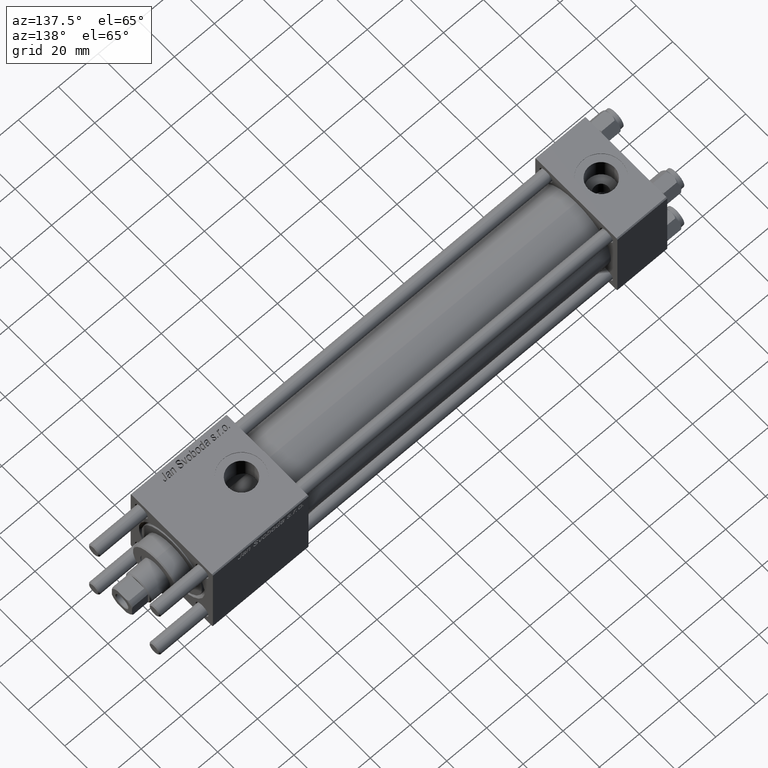
[diagram: clean part render]
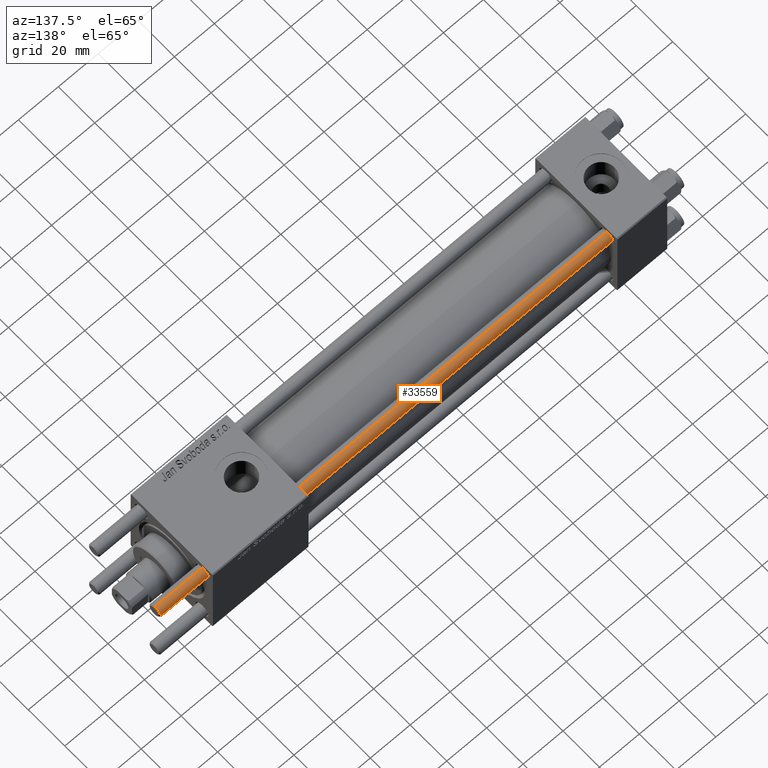
[diagram: same view with one face highlighted and labeled with its STEP entity id]
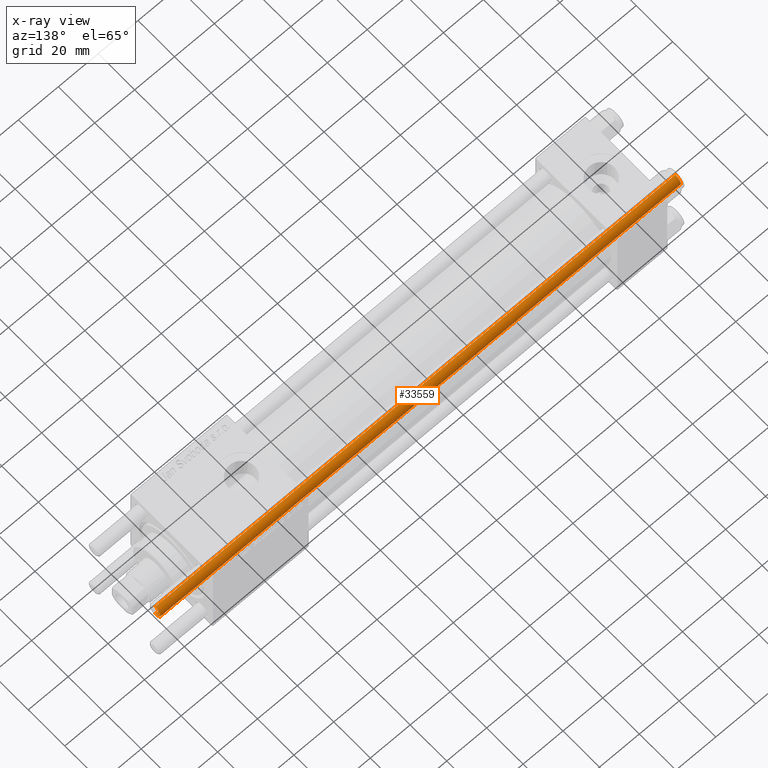
[diagram: x-ray of the same camera — body ghosted, the highlighted face saturated]
A machine part, auxiliary view. The second image highlights one B-rep face of the part: STEP entity #33559.
The next image is the same camera in x-ray: the body ghosted, the highlighted face saturated — about 0% of this face is hidden behind the body in this view.
In plain terms, the highlighted cylindrical surface (edge-blend (fillet) strip) has radius 3 mm, axis along (1, -0, -0).
Its self-contained STEP definition (entity closure, byte-faithful):
#3924 = ORIENTED_EDGE ( 'NONE', *, *, #44364, .F. ) ;
#4052 = EDGE_CURVE ( 'NONE', #16717, #43150, #30163, .T. ) ;
#4483 = ORIENTED_EDGE ( 'NONE', *, *, #15848, .T. ) ;
#6328 = DIRECTION ( 'NONE',  ( 1.000000000000000000, 0.000000000000000000, 0.000000000000000000 ) ) ;
#6733 = CIRCLE ( 'NONE', #36119, 3.000000000000000444 ) ;
#9513 = CYLINDRICAL_SURFACE ( 'NONE', #43861, 3.000000000000000444 ) ;
#10006 = DIRECTION ( 'NONE',  ( 1.000000000000000000, 0.000000000000000000, 0.000000000000000000 ) ) ;
#14887 = DIRECTION ( 'NONE',  ( -0.000000000000000000, -0.000000000000000000, 1.000000000000000000 ) ) ;
#15233 = DIRECTION ( 'NONE',  ( 0.000000000000000000, 0.000000000000000000, -1.000000000000000000 ) ) ;
#15739 = DIRECTION ( 'NONE',  ( -0.000000000000000000, -0.000000000000000000, -1.000000000000000000 ) ) ;
#15848 = EDGE_CURVE ( 'NONE', #49711, #27907, #6733, .T. ) ;
#16717 = VERTEX_POINT ( 'NONE', #39714 ) ;
#18994 = DIRECTION ( 'NONE',  ( -0.000000000000000000, -0.000000000000000000, -1.000000000000000000 ) ) ;
#19204 = CARTESIAN_POINT ( 'NONE',  ( -3.000000000000000444, 0.000000000000000000, 262.0000000000000000 ) ) ;
#21914 = AXIS2_PLACEMENT_3D ( 'NONE', #37373, #15233, #6328 ) ;
#23306 = CARTESIAN_POINT ( 'NONE',  ( 0.000000000000000000, 0.000000000000000000, 262.0000000000000000 ) ) ;
#23320 = ORIENTED_EDGE ( 'NONE', *, *, #34718, .T. ) ;
#24620 = VECTOR ( 'NONE', #15739, 1000.000000000000000 ) ;
#27320 = DIRECTION ( 'NONE',  ( -1.000000000000000000, 0.000000000000000000, 0.000000000000000000 ) ) ;
#27532 = CARTESIAN_POINT ( 'NONE',  ( 0.000000000000000000, 0.000000000000000000, 0.5000000000000004441 ) ) ;
#27907 = VERTEX_POINT ( 'NONE', #52998 ) ;
#29952 = CARTESIAN_POINT ( 'NONE',  ( 3.000000000000000444, 3.673940397442060361E-16, 0.5000000000000004441 ) ) ;
#30163 = CIRCLE ( 'NONE', #21914, 3.000000000000000444 ) ;
#33559 = ADVANCED_FACE ( 'NONE', ( #45146 ), #9513, .T. ) ;
#34718 = EDGE_CURVE ( 'NONE', #43150, #49711, #39211, .T. ) ;
#34890 = DIRECTION ( 'NONE',  ( -0.000000000000000000, -0.000000000000000000, -1.000000000000000000 ) ) ;
#35611 = VECTOR ( 'NONE', #34890, 1000.000000000000000 ) ;
#35723 = CARTESIAN_POINT ( 'NONE',  ( 3.000000000000000444, 3.673940397442060361E-16, 261.5000000000000568 ) ) ;
#36119 = AXIS2_PLACEMENT_3D ( 'NONE', #27532, #14887, #10006 ) ;
#37306 = LINE ( 'NONE', #19204, #24620 ) ;
#37373 = CARTESIAN_POINT ( 'NONE',  ( 0.000000000000000000, 0.000000000000000000, 261.5000000000000568 ) ) ;
#39211 = LINE ( 'NONE', #56702, #35611 ) ;
#39714 = CARTESIAN_POINT ( 'NONE',  ( -3.000000000000000444, 0.000000000000000000, 261.5000000000000568 ) ) ;
#39939 = EDGE_LOOP ( 'NONE', ( #43008, #23320, #4483, #3924 ) ) ;
#43008 = ORIENTED_EDGE ( 'NONE', *, *, #4052, .T. ) ;
#43150 = VERTEX_POINT ( 'NONE', #35723 ) ;
#43861 = AXIS2_PLACEMENT_3D ( 'NONE', #23306, #18994, #27320 ) ;
#44364 = EDGE_CURVE ( 'NONE', #16717, #27907, #37306, .T. ) ;
#45146 = FACE_OUTER_BOUND ( 'NONE', #39939, .T. ) ;
#49711 = VERTEX_POINT ( 'NONE', #29952 ) ;
#52998 = CARTESIAN_POINT ( 'NONE',  ( -3.000000000000000444, 0.000000000000000000, 0.5000000000000004441 ) ) ;
#56702 = CARTESIAN_POINT ( 'NONE',  ( 3.000000000000000444, 3.673940397442060361E-16, 262.0000000000000000 ) ) ;